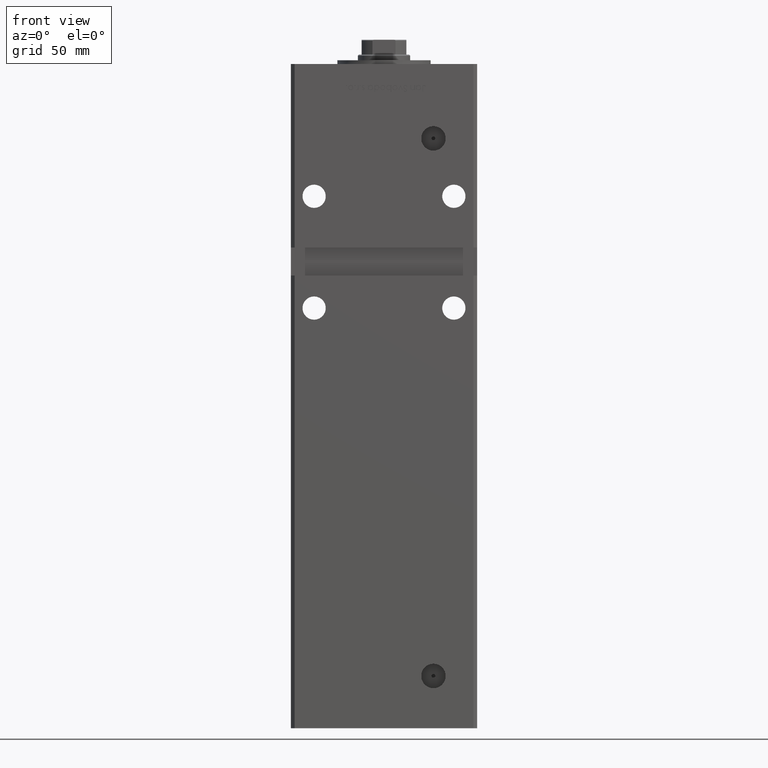
[diagram: clean part render]
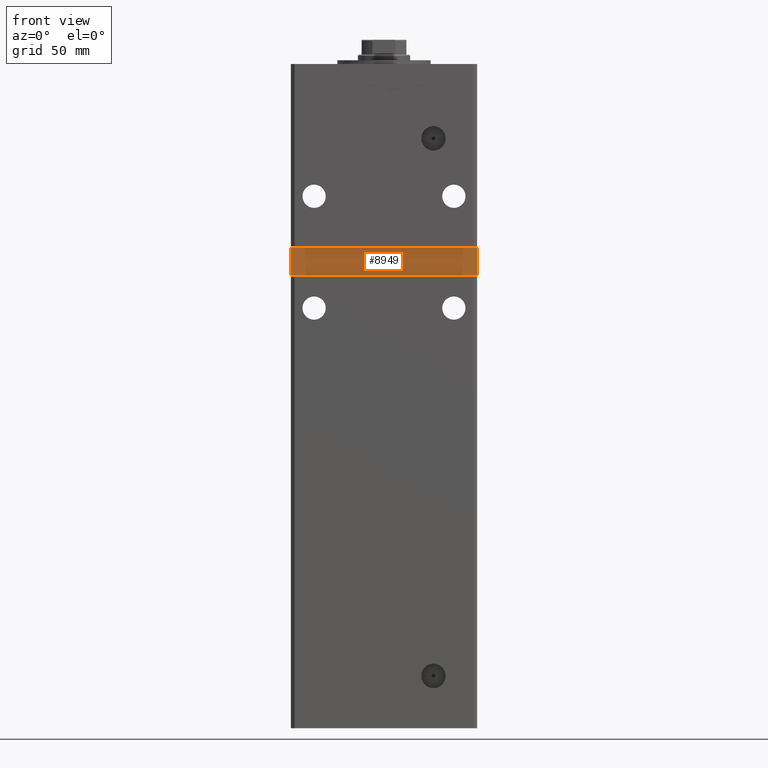
[diagram: same view with one face highlighted and labeled with its STEP entity id]
A machine part, front view. The second image highlights one B-rep face of the part: STEP entity #8949.
In plain terms, the highlighted planar face has unit normal (0, -1, 0).
Its self-contained STEP definition (entity closure, byte-faithful):
#3789 = VERTEX_POINT ( 'NONE', #40894 ) ;
#5731 = CARTESIAN_POINT ( 'NONE',  ( -49.99999999999998579, -38.50000000000000000, 239.0000000000000284 ) ) ;
#7535 = EDGE_CURVE ( 'NONE', #49538, #18588, #8775, .T. ) ;
#7761 = LINE ( 'NONE', #24162, #21012 ) ;
#8721 = LINE ( 'NONE', #42046, #52298 ) ;
#8775 = LINE ( 'NONE', #5731, #33159 ) ;
#8949 = ADVANCED_FACE ( 'NONE', ( #46542 ), #50574, .T. ) ;
#9088 = DIRECTION ( 'NONE',  ( 4.625929269271481969E-16, -0.000000000000000000, 1.000000000000000000 ) ) ;
#9138 = EDGE_LOOP ( 'NONE', ( #42909, #51014, #25538, #21136 ) ) ;
#12081 = LINE ( 'NONE', #16384, #27840 ) ;
#13283 = DIRECTION ( 'NONE',  ( -1.000000000000000000, -0.000000000000000000, -0.000000000000000000 ) ) ;
#16384 = CARTESIAN_POINT ( 'NONE',  ( 50.00000000000000000, -38.50000000000000000, 239.0000000000000284 ) ) ;
#16726 = DIRECTION ( 'NONE',  ( 0.000000000000000000, 0.000000000000000000, -1.000000000000000000 ) ) ;
#17203 = EDGE_CURVE ( 'NONE', #43308, #3789, #12081, .T. ) ;
#18588 = VERTEX_POINT ( 'NONE', #37538 ) ;
#21012 = VECTOR ( 'NONE', #31945, 1000.000000000000000 ) ;
#21136 = ORIENTED_EDGE ( 'NONE', *, *, #47893, .T. ) ;
#24162 = CARTESIAN_POINT ( 'NONE',  ( -49.99999999999998579, -38.50000000000000000, 224.0000000000000000 ) ) ;
#25538 = ORIENTED_EDGE ( 'NONE', *, *, #7535, .T. ) ;
#25861 = CARTESIAN_POINT ( 'NONE',  ( 0.000000000000000000, -38.50000000000000000, 0.000000000000000000 ) ) ;
#26140 = CARTESIAN_POINT ( 'NONE',  ( 49.99999999999998579, -38.49999999999999289, 224.0000000000000000 ) ) ;
#27840 = VECTOR ( 'NONE', #9088, 1000.000000000000000 ) ;
#29678 = CARTESIAN_POINT ( 'NONE',  ( -49.99999999999998579, -38.50000000000000000, 239.0000000000000284 ) ) ;
#31945 = DIRECTION ( 'NONE',  ( 1.000000000000000000, 0.000000000000000000, 0.000000000000000000 ) ) ;
#33159 = VECTOR ( 'NONE', #34738, 1000.000000000000000 ) ;
#34738 = DIRECTION ( 'NONE',  ( 0.000000000000000000, 0.000000000000000000, -1.000000000000000000 ) ) ;
#37538 = CARTESIAN_POINT ( 'NONE',  ( -49.99999999999998579, -38.50000000000000000, 224.0000000000000000 ) ) ;
#40052 = AXIS2_PLACEMENT_3D ( 'NONE', #25861, #45493, #16726 ) ;
#40514 = EDGE_CURVE ( 'NONE', #3789, #49538, #8721, .T. ) ;
#40894 = CARTESIAN_POINT ( 'NONE',  ( 50.00000000000000000, -38.50000000000000000, 239.0000000000000284 ) ) ;
#42046 = CARTESIAN_POINT ( 'NONE',  ( -49.99999999999998579, -38.50000000000000000, 239.0000000000000284 ) ) ;
#42909 = ORIENTED_EDGE ( 'NONE', *, *, #17203, .T. ) ;
#43308 = VERTEX_POINT ( 'NONE', #26140 ) ;
#45493 = DIRECTION ( 'NONE',  ( 0.000000000000000000, -1.000000000000000000, 0.000000000000000000 ) ) ;
#46542 = FACE_OUTER_BOUND ( 'NONE', #9138, .T. ) ;
#47893 = EDGE_CURVE ( 'NONE', #18588, #43308, #7761, .T. ) ;
#49538 = VERTEX_POINT ( 'NONE', #29678 ) ;
#50574 = PLANE ( 'NONE',  #40052 ) ;
#51014 = ORIENTED_EDGE ( 'NONE', *, *, #40514, .T. ) ;
#52298 = VECTOR ( 'NONE', #13283, 1000.000000000000000 ) ;